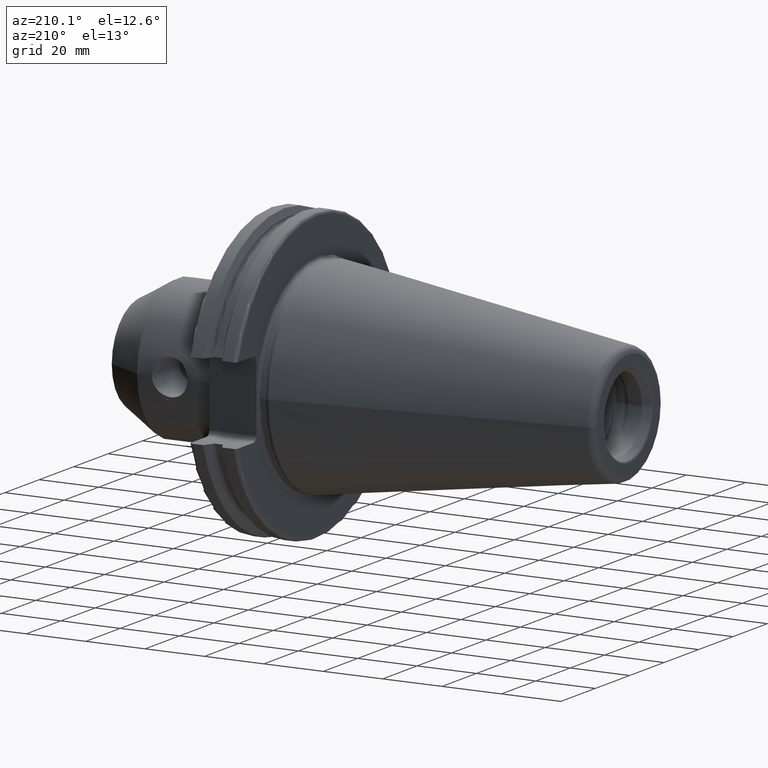
[diagram: clean part render]
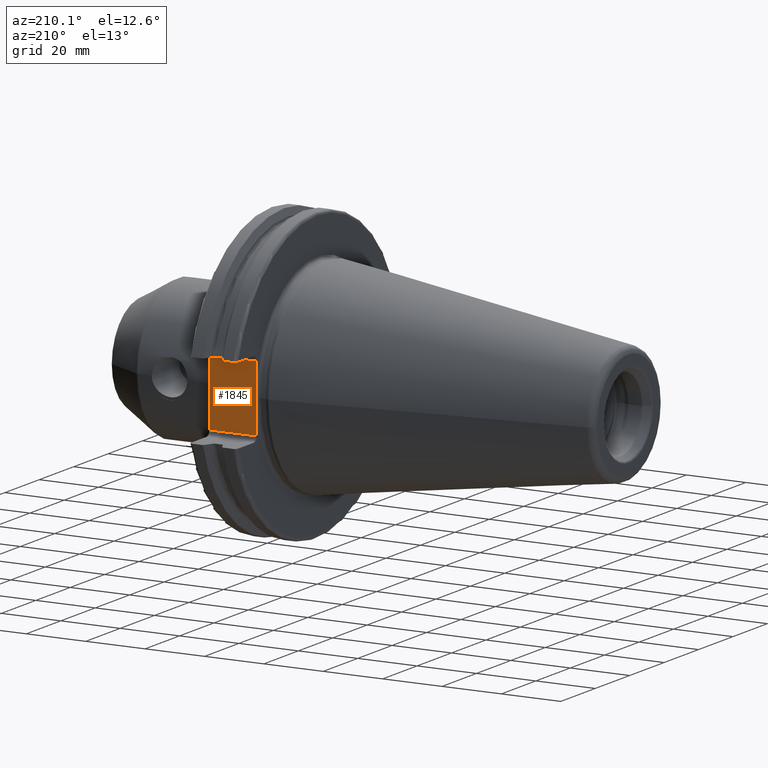
[diagram: same view with one face highlighted and labeled with its STEP entity id]
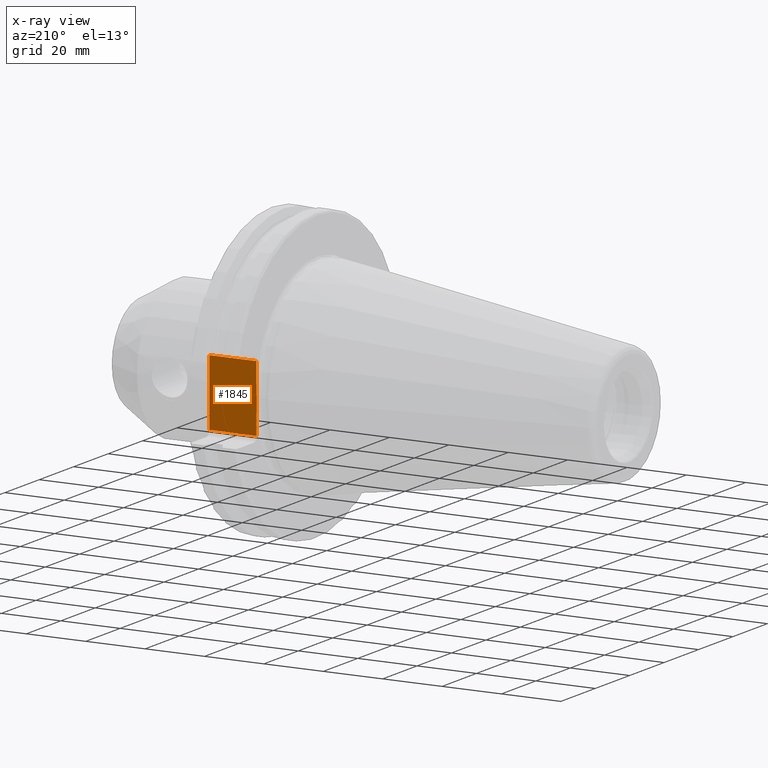
[diagram: x-ray of the same camera — body ghosted, the highlighted face saturated]
A machine part, auxiliary view. The second image highlights one B-rep face of the part: STEP entity #1845.
The next image is the same camera in x-ray: the body ghosted, the highlighted face saturated — about 0% of this face is hidden behind the body in this view.
In plain terms, the highlighted planar face has unit normal (0, -1, 0).
Its self-contained STEP definition (entity closure, byte-faithful):
#96=CARTESIAN_POINT('',(3.161444226151E0,3.53E1,-1.048836461230E-13));
#97=CARTESIAN_POINT('',(3.161444226151E0,3.53E1,-2.287557745851E-1));
#98=CARTESIAN_POINT('',(3.162734010751E0,3.53E1,-6.792530123044E-1));
#99=CARTESIAN_POINT('',(3.167877030309E0,3.53E1,-1.331895850106E0));
#100=CARTESIAN_POINT('',(3.175250793624E0,3.53E1,-1.967616454588E0));
#101=CARTESIAN_POINT('',(3.183670148061E0,3.53E1,-2.589717830169E0));
#102=CARTESIAN_POINT('',(3.191796133338E0,3.53E1,-3.202378106077E0));
#103=CARTESIAN_POINT('',(3.198127290791E0,3.53E1,-3.809054455619E0));
#104=CARTESIAN_POINT('',(3.2E0,3.53E1,-4.213157466434E0));
#105=CARTESIAN_POINT('',(3.2E0,3.53E1,-4.414818795828E0));
#122=DIRECTION('',(-1.E0,0.E0,0.E0));
#123=VECTOR('',#122,1.585E1);
#124=CARTESIAN_POINT('',(1.905E1,3.53E1,1.115E1));
#125=LINE('',#124,#123);
#126=DIRECTION('',(-1.E0,0.E0,0.E0));
#127=VECTOR('',#126,1.585E1);
#128=CARTESIAN_POINT('',(1.905E1,3.53E1,-1.115E1));
#129=LINE('',#128,#127);
#152=DIRECTION('',(0.E0,0.E0,-1.E0));
#153=VECTOR('',#152,2.23E1);
#154=CARTESIAN_POINT('',(1.905E1,3.53E1,1.115E1));
#155=LINE('',#154,#153);
#305=DIRECTION('',(0.E0,0.E0,-1.E0));
#306=VECTOR('',#305,6.735181204172E0);
#307=CARTESIAN_POINT('',(3.2E0,3.53E1,-4.414818795828E0));
#308=LINE('',#307,#306);
#309=DIRECTION('',(0.E0,0.E0,-1.E0));
#310=VECTOR('',#309,6.735181204172E0);
#311=CARTESIAN_POINT('',(3.2E0,3.53E1,1.115E1));
#312=LINE('',#311,#310);
#936=CARTESIAN_POINT('',(3.2E0,3.53E1,4.414818795828E0));
#937=CARTESIAN_POINT('',(3.2E0,3.53E1,4.213098987331E0));
#938=CARTESIAN_POINT('',(3.198126239348E0,3.53E1,3.808889642023E0));
#939=CARTESIAN_POINT('',(3.191792541487E0,3.53E1,3.202078124088E0));
#940=CARTESIAN_POINT('',(3.183664786024E0,3.53E1,2.589329618622E0));
#941=CARTESIAN_POINT('',(3.175245424270E0,3.53E1,1.967199873297E0));
#942=CARTESIAN_POINT('',(3.167873523896E0,3.53E1,1.331533559003E0));
#943=CARTESIAN_POINT('',(3.162733016852E0,3.53E1,6.790196322900E-1));
#944=CARTESIAN_POINT('',(3.161444226151E0,3.53E1,2.286685292051E-1));
#945=CARTESIAN_POINT('',(3.161444226151E0,3.53E1,-1.048836461230E-13));
#1544=VERTEX_POINT('',#936);
#1545=VERTEX_POINT('',#945);
#1546=VERTEX_POINT('',#105);
#1595=CARTESIAN_POINT('',(1.905E1,3.53E1,1.115E1));
#1596=CARTESIAN_POINT('',(3.2E0,3.53E1,1.115E1));
#1597=VERTEX_POINT('',#1595);
#1598=VERTEX_POINT('',#1596);
#1607=CARTESIAN_POINT('',(1.905E1,3.53E1,-1.115E1));
#1608=CARTESIAN_POINT('',(3.2E0,3.53E1,-1.115E1));
#1609=VERTEX_POINT('',#1607);
#1610=VERTEX_POINT('',#1608);
#1825=CARTESIAN_POINT('',(1.905E1,3.53E1,1.29E1));
#1826=DIRECTION('',(0.E0,-1.E0,0.E0));
#1827=DIRECTION('',(0.E0,0.E0,-1.E0));
#1828=AXIS2_PLACEMENT_3D('',#1825,#1826,#1827);
#1829=PLANE('',#1828);
#1831=ORIENTED_EDGE('',*,*,#1830,.T.);
#1833=ORIENTED_EDGE('',*,*,#1832,.T.);
#1835=ORIENTED_EDGE('',*,*,#1834,.T.);
#1836=ORIENTED_EDGE('',*,*,#1813,.T.);
#1838=ORIENTED_EDGE('',*,*,#1837,.T.);
#1840=ORIENTED_EDGE('',*,*,#1839,.F.);
#1842=ORIENTED_EDGE('',*,*,#1841,.F.);
#1843=EDGE_LOOP('',(#1831,#1833,#1835,#1836,#1838,#1840,#1842));
#1844=FACE_OUTER_BOUND('',#1843,.F.);
#1845=ADVANCED_FACE('',(#1844),#1829,.F.);
#106=B_SPLINE_CURVE_WITH_KNOTS('',3,(#96,#97,#98,#99,#100,#101,#102,#103,#104,
#105),.UNSPECIFIED.,.F.,.F.,(4,1,1,1,1,1,1,4),(0.E0,1.428571428571E-1,
2.857142857143E-1,4.285714285714E-1,5.714285714286E-1,7.142857142857E-1,
8.571428571429E-1,1.E0),.UNSPECIFIED.);
#946=B_SPLINE_CURVE_WITH_KNOTS('',3,(#936,#937,#938,#939,#940,#941,#942,#943,
#944,#945),.UNSPECIFIED.,.F.,.F.,(4,1,1,1,1,1,1,4),(0.E0,1.428571428571E-1,
2.857142857143E-1,4.285714285714E-1,5.714285714286E-1,7.142857142857E-1,
8.571428571429E-1,1.E0),.UNSPECIFIED.);
#1813=EDGE_CURVE('',#1545,#1546,#106,.T.);
#1830=EDGE_CURVE('',#1597,#1598,#125,.T.);
#1832=EDGE_CURVE('',#1598,#1544,#312,.T.);
#1834=EDGE_CURVE('',#1544,#1545,#946,.T.);
#1837=EDGE_CURVE('',#1546,#1610,#308,.T.);
#1839=EDGE_CURVE('',#1609,#1610,#129,.T.);
#1841=EDGE_CURVE('',#1597,#1609,#155,.T.);